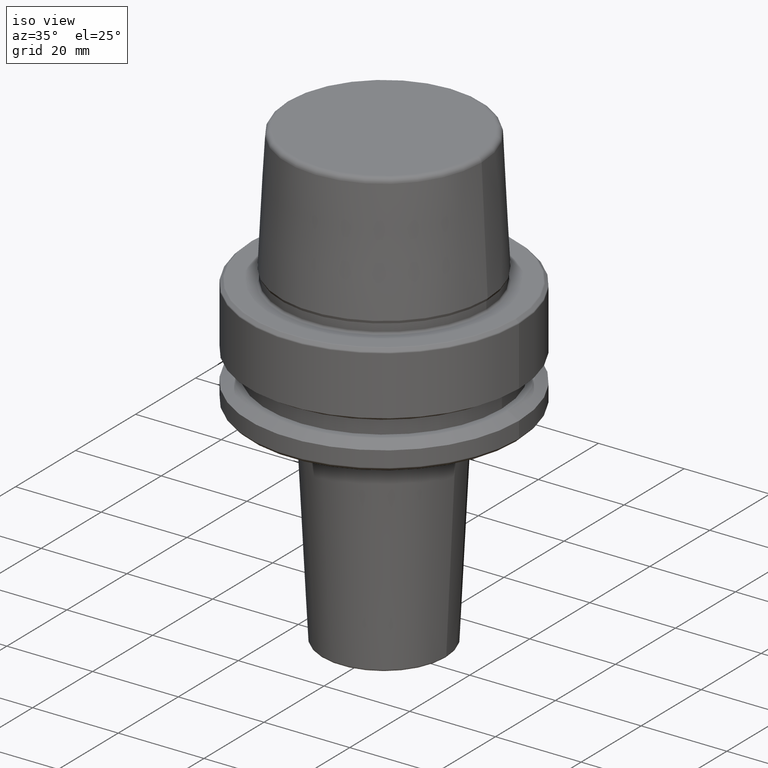
[diagram: clean part render]
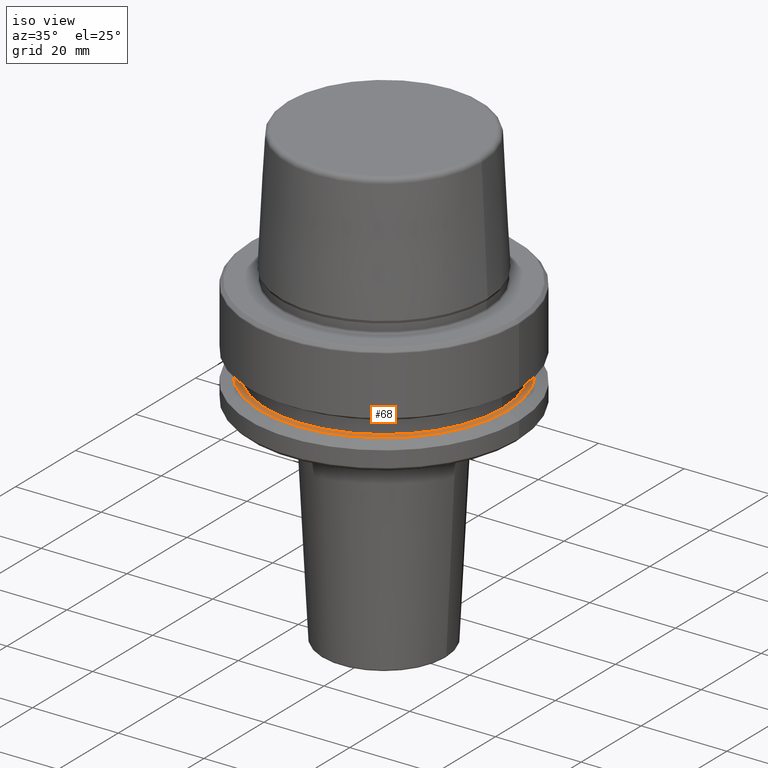
[diagram: same view with one face highlighted and labeled with its STEP entity id]
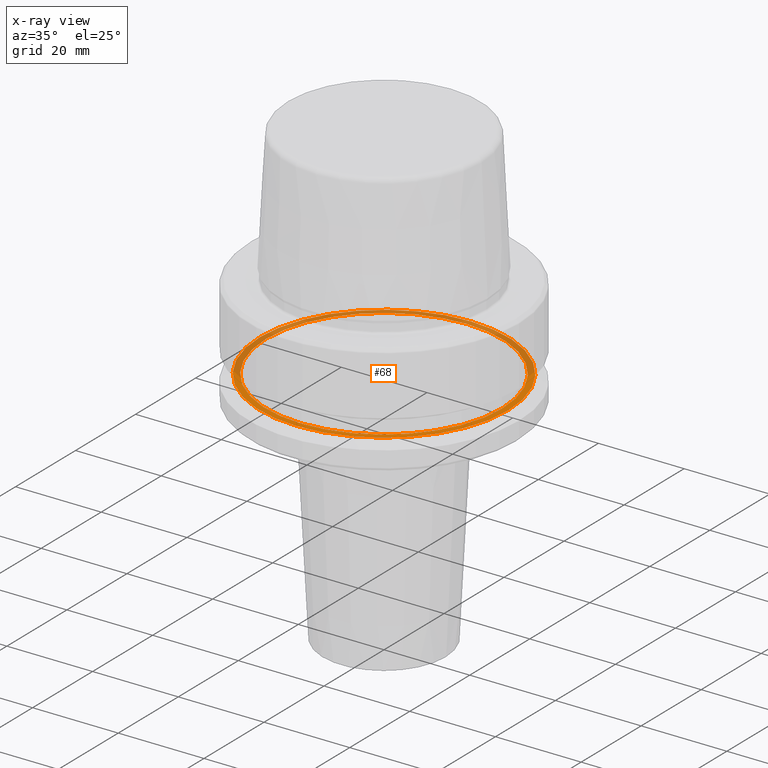
[diagram: x-ray of the same camera — body ghosted, the highlighted face saturated]
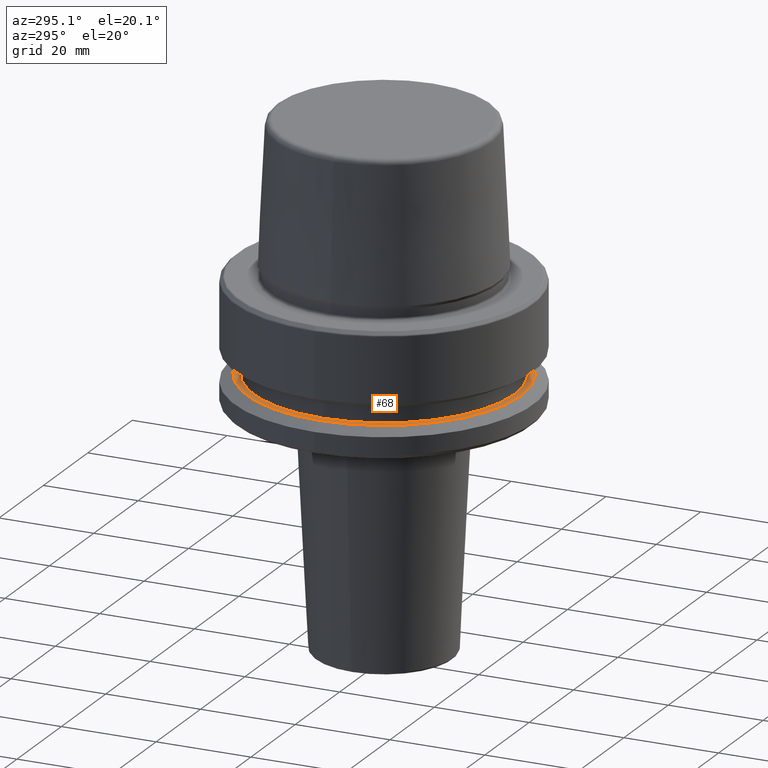
[diagram: same view with one face highlighted and labeled with its STEP entity id]
A machine part, iso view. The second image highlights one B-rep face of the part: STEP entity #68.
The next image is the same camera in x-ray: the body ghosted, the highlighted face saturated — about 50% of this face is hidden behind the body in this view.
A second angle (auxiliary view) of the same face is appended — the face is thin or edge-on in the first view.
In plain terms, the highlighted planar face has unit normal (0, 0, -1).
Its self-contained STEP definition (entity closure, byte-faithful):
#28 = DIRECTION ( 'NONE',  ( 0.0000000000000000000, 0.0000000000000000000, -1.000000000000000000 ) ) ;
#68 = ADVANCED_FACE ( 'NONE', ( #558, #1054 ), #891, .F. ) ;
#102 = DIRECTION ( 'NONE',  ( -0.0000000000000000000, -0.0000000000000000000, 1.000000000000000000 ) ) ;
#164 = VERTEX_POINT ( 'NONE', #673 ) ;
#208 = CARTESIAN_POINT ( 'NONE',  ( -27.49999999999999600, 3.367778697655220900E-015, -19.90000000000001600 ) ) ;
#235 = CARTESIAN_POINT ( 'NONE',  ( 0.0000000000000000000, 0.0000000000000000000, -19.90000000000001600 ) ) ;
#247 = AXIS2_PLACEMENT_3D ( 'NONE', #789, #1175, #873 ) ;
#288 = EDGE_CURVE ( 'NONE', #615, #824, #401, .T. ) ;
#385 = AXIS2_PLACEMENT_3D ( 'NONE', #1000, #102, #1193 ) ;
#394 = ORIENTED_EDGE ( 'NONE', *, *, #288, .T. ) ;
#401 = CIRCLE ( 'NONE', #385, 28.94089653438085100 ) ;
#412 = AXIS2_PLACEMENT_3D ( 'NONE', #1035, #28, #1021 ) ;
#482 = AXIS2_PLACEMENT_3D ( 'NONE', #235, #799, #704 ) ;
#512 = CARTESIAN_POINT ( 'NONE',  ( 28.94089653438085100, 3.700937523921292900E-015, -19.90000000000001600 ) ) ;
#515 = EDGE_CURVE ( 'NONE', #824, #615, #1186, .T. ) ;
#558 = FACE_BOUND ( 'NONE', #1177, .T. ) ;
#565 = CARTESIAN_POINT ( 'NONE',  ( 0.0000000000000000000, 0.0000000000000000000, -19.90000000000001600 ) ) ;
#615 = VERTEX_POINT ( 'NONE', #768 ) ;
#658 = DIRECTION ( 'NONE',  ( -0.0000000000000000000, -0.0000000000000000000, 1.000000000000000000 ) ) ;
#673 = CARTESIAN_POINT ( 'NONE',  ( 27.49999999999999600, 0.0000000000000000000, -19.90000000000001600 ) ) ;
#704 = DIRECTION ( 'NONE',  ( 1.000000000000000000, 0.0000000000000000000, 0.0000000000000000000 ) ) ;
#709 = ORIENTED_EDGE ( 'NONE', *, *, #515, .T. ) ;
#733 = VERTEX_POINT ( 'NONE', #208 ) ;
#768 = CARTESIAN_POINT ( 'NONE',  ( -28.94089653438085100, 0.0000000000000000000, -19.90000000000001600 ) ) ;
#789 = CARTESIAN_POINT ( 'NONE',  ( 0.0000000000000000000, 0.0000000000000000000, -19.90000000000001600 ) ) ;
#799 = DIRECTION ( 'NONE',  ( -0.0000000000000000000, -0.0000000000000000000, 1.000000000000000000 ) ) ;
#824 = VERTEX_POINT ( 'NONE', #512 ) ;
#842 = EDGE_LOOP ( 'NONE', ( #394, #709 ) ) ;
#843 = ORIENTED_EDGE ( 'NONE', *, *, #956, .F. ) ;
#866 = DIRECTION ( 'NONE',  ( 1.000000000000000000, 0.0000000000000000000, 0.0000000000000000000 ) ) ;
#870 = EDGE_CURVE ( 'NONE', #164, #733, #1189, .T. ) ;
#873 = DIRECTION ( 'NONE',  ( 1.000000000000000000, 0.0000000000000000000, 0.0000000000000000000 ) ) ;
#891 = PLANE ( 'NONE',  #412 ) ;
#956 = EDGE_CURVE ( 'NONE', #733, #164, #1094, .T. ) ;
#1000 = CARTESIAN_POINT ( 'NONE',  ( 0.0000000000000000000, 0.0000000000000000000, -19.90000000000001600 ) ) ;
#1021 = DIRECTION ( 'NONE',  ( -1.000000000000000000, 0.0000000000000000000, -0.0000000000000000000 ) ) ;
#1029 = AXIS2_PLACEMENT_3D ( 'NONE', #565, #658, #866 ) ;
#1035 = CARTESIAN_POINT ( 'NONE',  ( 0.0000000000000000000, 27.49999999999999600, -19.90000000000000900 ) ) ;
#1054 = FACE_OUTER_BOUND ( 'NONE', #842, .T. ) ;
#1094 = CIRCLE ( 'NONE', #1029, 27.49999999999999600 ) ;
#1163 = ORIENTED_EDGE ( 'NONE', *, *, #870, .F. ) ;
#1175 = DIRECTION ( 'NONE',  ( -0.0000000000000000000, -0.0000000000000000000, 1.000000000000000000 ) ) ;
#1177 = EDGE_LOOP ( 'NONE', ( #1163, #843 ) ) ;
#1186 = CIRCLE ( 'NONE', #482, 28.94089653438085100 ) ;
#1189 = CIRCLE ( 'NONE', #247, 27.49999999999999600 ) ;
#1193 = DIRECTION ( 'NONE',  ( 1.000000000000000000, 0.0000000000000000000, 0.0000000000000000000 ) ) ;